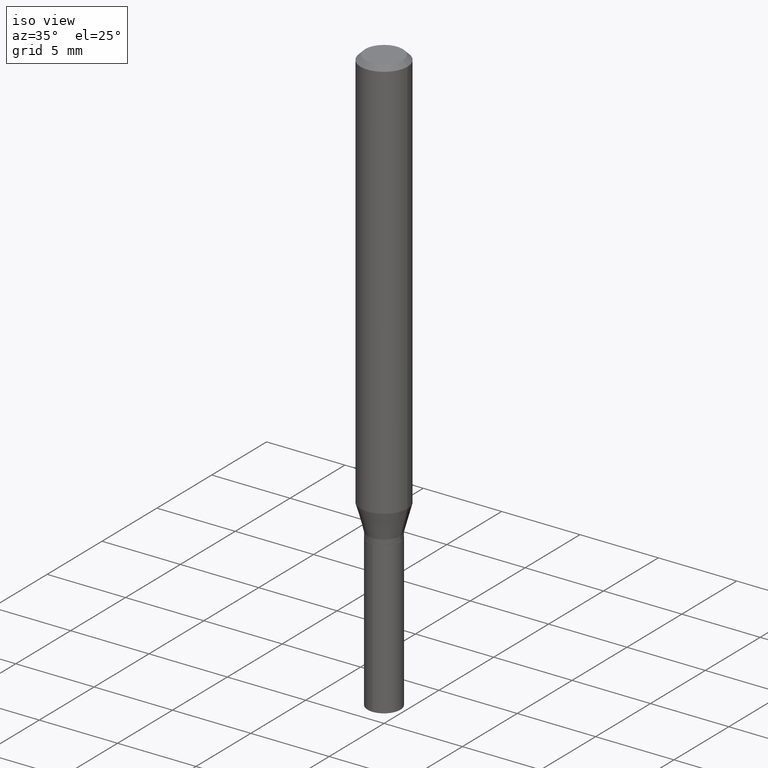
[diagram: clean part render]
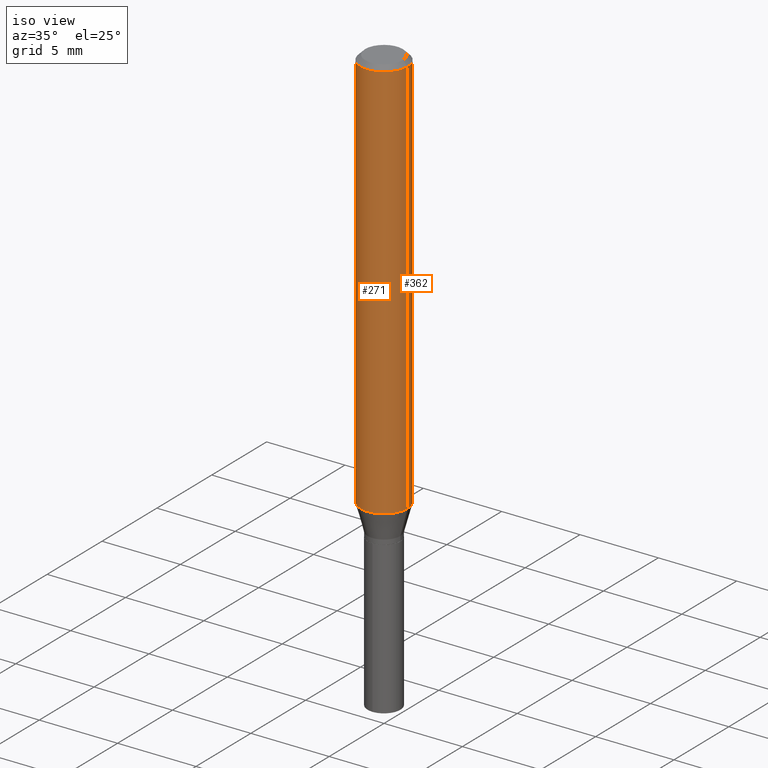
[diagram: same view with one multi-face feature highlighted, each face labeled with its STEP entity id]
A machine part, iso view. The highlighted faces form ONE feature: a constant-radius fillet chain: 2 tangent blend faces with common blend radius 1.4999 mm. The faces share edges in the B-rep.
Their STEP definitions:
[1] entity #271 (Cylinder):
#11 = ORIENTED_EDGE ( 'NONE', *, *, #39, .T. ) ;
#31 = VERTEX_POINT ( 'NONE', #106 ) ;
#33 = EDGE_LOOP ( 'NONE', ( #368, #104, #11, #186 ) ) ;
#39 = EDGE_CURVE ( 'NONE', #31, #334, #262, .T. ) ;
#46 = CARTESIAN_POINT ( 'NONE',  ( -0.05905000000000006771, 4.195754854663396409E-16, -2.904631170795525045E-30 ) ) ;
#50 = CARTESIAN_POINT ( 'NONE',  ( 0.05905000000000000526, -4.535783407291119586E-16, -0.01181000000000007565 ) ) ;
#59 = FACE_OUTER_BOUND ( 'NONE', #33, .T. ) ;
#66 = CARTESIAN_POINT ( 'NONE',  ( -0.05905000000000013016, -3.125661714500392772E-15, -1.015396290544516855 ) ) ;
#81 = EDGE_CURVE ( 'NONE', #299, #334, #399, .T. ) ;
#104 = ORIENTED_EDGE ( 'NONE', *, *, #317, .T. ) ;
#106 = CARTESIAN_POINT ( 'NONE',  ( 0.05905000000000013016, -3.957581146084108368E-15, -1.015396290544516855 ) ) ;
#117 = CARTESIAN_POINT ( 'NONE',  ( 0.05905000000000006771, -4.123439461173745257E-16, 2.879382386107503723E-30 ) ) ;
#128 = EDGE_CURVE ( 'NONE', #345, #299, #390, .T. ) ;
#133 = DIRECTION ( 'NONE',  ( 1.000000000000000000, -6.982962677686266711E-15, 4.876176775795936353E-29 ) ) ;
#134 = AXIS2_PLACEMENT_3D ( 'NONE', #180, #207, #133 ) ;
#136 = CARTESIAN_POINT ( 'NONE',  ( -0.05905000000000000526, -1.373660311822895307E-15, -0.01181000000000007565 ) ) ;
#167 = AXIS2_PLACEMENT_3D ( 'NONE', #236, #273, #200 ) ;
#176 = CYLINDRICAL_SURFACE ( 'NONE', #134, 0.05905000000000006771 ) ;
#180 = CARTESIAN_POINT ( 'NONE',  ( 0.000000000000000000, 0.000000000000000000, 0.000000000000000000 ) ) ;
#186 = ORIENTED_EDGE ( 'NONE', *, *, #81, .F. ) ;
#200 = DIRECTION ( 'NONE',  ( 1.000000000000000000, -6.982962677686268288E-15, 0.000000000000000000 ) ) ;
#207 = DIRECTION ( 'NONE',  ( -2.445468806185136597E-29, 3.491481338843145583E-15, 1.000000000000000000 ) ) ;
#215 = AXIS2_PLACEMENT_3D ( 'NONE', #372, #438, #396 ) ;
#236 = CARTESIAN_POINT ( 'NONE',  ( 2.888098660104664642E-31, -4.123439461173780879E-17, -0.01181000000000007565 ) ) ;
#262 = LINE ( 'NONE', #117, #315 ) ;
#271 = ADVANCED_FACE ( 'NONE', ( #59 ), #176, .T. ) ;
#273 = DIRECTION ( 'NONE',  ( -2.445468806185136597E-29, 3.491481338843145583E-15, 1.000000000000000000 ) ) ;
#299 = VERTEX_POINT ( 'NONE', #136 ) ;
#314 = DIRECTION ( 'NONE',  ( -2.445468806185136877E-29, 3.491481338843145188E-15, 1.000000000000000000 ) ) ;
#315 = VECTOR ( 'NONE', #314, 39.37007874015748143 ) ;
#317 = EDGE_CURVE ( 'NONE', #345, #31, #338, .T. ) ;
#334 = VERTEX_POINT ( 'NONE', #50 ) ;
#338 = CIRCLE ( 'NONE', #215, 0.05905000000000013016 ) ;
#345 = VERTEX_POINT ( 'NONE', #66 ) ;
#368 = ORIENTED_EDGE ( 'NONE', *, *, #128, .F. ) ;
#372 = CARTESIAN_POINT ( 'NONE',  ( 2.483119954442715562E-29, -3.545237199966733054E-15, -1.015396290544516855 ) ) ;
#390 = LINE ( 'NONE', #46, #457 ) ;
#396 = DIRECTION ( 'NONE',  ( 1.000000000000000000, -6.982962677686265133E-15, 0.000000000000000000 ) ) ;
#399 = CIRCLE ( 'NONE', #167, 0.05905000000000000526 ) ;
#438 = DIRECTION ( 'NONE',  ( -2.445468806185136597E-29, 3.491481338843145583E-15, 1.000000000000000000 ) ) ;
#457 = VECTOR ( 'NONE', #465, 39.37007874015748143 ) ;
#465 = DIRECTION ( 'NONE',  ( -2.445468806185136877E-29, 3.491481338843145188E-15, 1.000000000000000000 ) ) ;
[2] entity #362 (Cylinder):
#4 = ORIENTED_EDGE ( 'NONE', *, *, #128, .T. ) ;
#19 = DIRECTION ( 'NONE',  ( 1.000000000000000000, -6.982962677686265133E-15, 0.000000000000000000 ) ) ;
#21 = CARTESIAN_POINT ( 'NONE',  ( 2.483119954442715562E-29, -3.545237199966733054E-15, -1.015396290544516855 ) ) ;
#30 = DIRECTION ( 'NONE',  ( -2.445468806185136597E-29, 3.491481338843145583E-15, 1.000000000000000000 ) ) ;
#31 = VERTEX_POINT ( 'NONE', #106 ) ;
#39 = EDGE_CURVE ( 'NONE', #31, #334, #262, .T. ) ;
#46 = CARTESIAN_POINT ( 'NONE',  ( -0.05905000000000006771, 4.195754854663396409E-16, -2.904631170795525045E-30 ) ) ;
#50 = CARTESIAN_POINT ( 'NONE',  ( 0.05905000000000000526, -4.535783407291119586E-16, -0.01181000000000007565 ) ) ;
#63 = CARTESIAN_POINT ( 'NONE',  ( 0.000000000000000000, 0.000000000000000000, 0.000000000000000000 ) ) ;
#66 = CARTESIAN_POINT ( 'NONE',  ( -0.05905000000000013016, -3.125661714500392772E-15, -1.015396290544516855 ) ) ;
#69 = FACE_OUTER_BOUND ( 'NONE', #234, .T. ) ;
#86 = CIRCLE ( 'NONE', #413, 0.05905000000000013016 ) ;
#91 = EDGE_CURVE ( 'NONE', #334, #299, #185, .T. ) ;
#106 = CARTESIAN_POINT ( 'NONE',  ( 0.05905000000000013016, -3.957581146084108368E-15, -1.015396290544516855 ) ) ;
#117 = CARTESIAN_POINT ( 'NONE',  ( 0.05905000000000006771, -4.123439461173745257E-16, 2.879382386107503723E-30 ) ) ;
#128 = EDGE_CURVE ( 'NONE', #345, #299, #390, .T. ) ;
#136 = CARTESIAN_POINT ( 'NONE',  ( -0.05905000000000000526, -1.373660311822895307E-15, -0.01181000000000007565 ) ) ;
#166 = DIRECTION ( 'NONE',  ( 1.000000000000000000, -6.982962677686268288E-15, 0.000000000000000000 ) ) ;
#178 = ORIENTED_EDGE ( 'NONE', *, *, #252, .T. ) ;
#182 = CYLINDRICAL_SURFACE ( 'NONE', #194, 0.05905000000000006771 ) ;
#185 = CIRCLE ( 'NONE', #228, 0.05905000000000000526 ) ;
#194 = AXIS2_PLACEMENT_3D ( 'NONE', #63, #30, #485 ) ;
#228 = AXIS2_PLACEMENT_3D ( 'NONE', #355, #468, #166 ) ;
#234 = EDGE_LOOP ( 'NONE', ( #178, #4, #488, #456 ) ) ;
#252 = EDGE_CURVE ( 'NONE', #31, #345, #86, .T. ) ;
#262 = LINE ( 'NONE', #117, #315 ) ;
#299 = VERTEX_POINT ( 'NONE', #136 ) ;
#314 = DIRECTION ( 'NONE',  ( -2.445468806185136877E-29, 3.491481338843145188E-15, 1.000000000000000000 ) ) ;
#315 = VECTOR ( 'NONE', #314, 39.37007874015748143 ) ;
#334 = VERTEX_POINT ( 'NONE', #50 ) ;
#345 = VERTEX_POINT ( 'NONE', #66 ) ;
#355 = CARTESIAN_POINT ( 'NONE',  ( 2.888098660104664642E-31, -4.123439461173780879E-17, -0.01181000000000007565 ) ) ;
#362 = ADVANCED_FACE ( 'NONE', ( #69 ), #182, .T. ) ;
#390 = LINE ( 'NONE', #46, #457 ) ;
#403 = DIRECTION ( 'NONE',  ( -2.445468806185136597E-29, 3.491481338843145583E-15, 1.000000000000000000 ) ) ;
#413 = AXIS2_PLACEMENT_3D ( 'NONE', #21, #403, #19 ) ;
#456 = ORIENTED_EDGE ( 'NONE', *, *, #39, .F. ) ;
#457 = VECTOR ( 'NONE', #465, 39.37007874015748143 ) ;
#465 = DIRECTION ( 'NONE',  ( -2.445468806185136877E-29, 3.491481338843145188E-15, 1.000000000000000000 ) ) ;
#468 = DIRECTION ( 'NONE',  ( -2.445468806185136597E-29, 3.491481338843145583E-15, 1.000000000000000000 ) ) ;
#485 = DIRECTION ( 'NONE',  ( 1.000000000000000000, -6.982962677686266711E-15, 4.876176775795936353E-29 ) ) ;
#488 = ORIENTED_EDGE ( 'NONE', *, *, #91, .F. ) ;